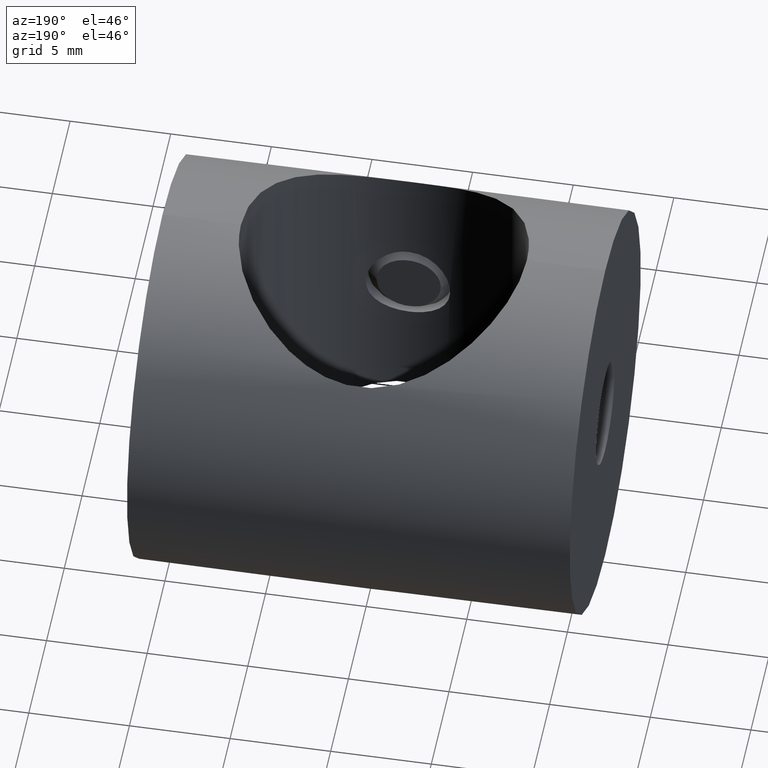
[diagram: clean part render]
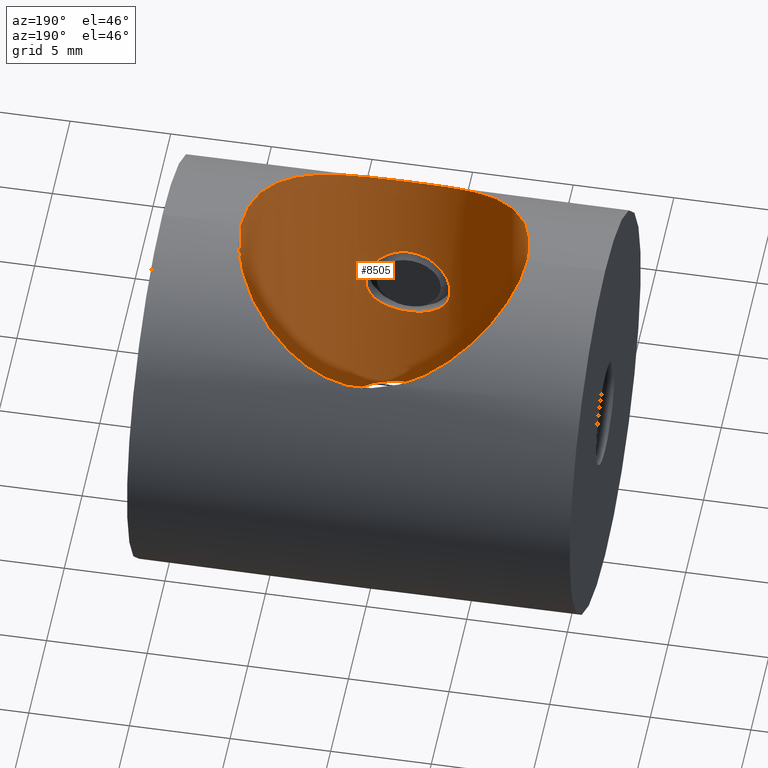
[diagram: same view with one face highlighted and labeled with its STEP entity id]
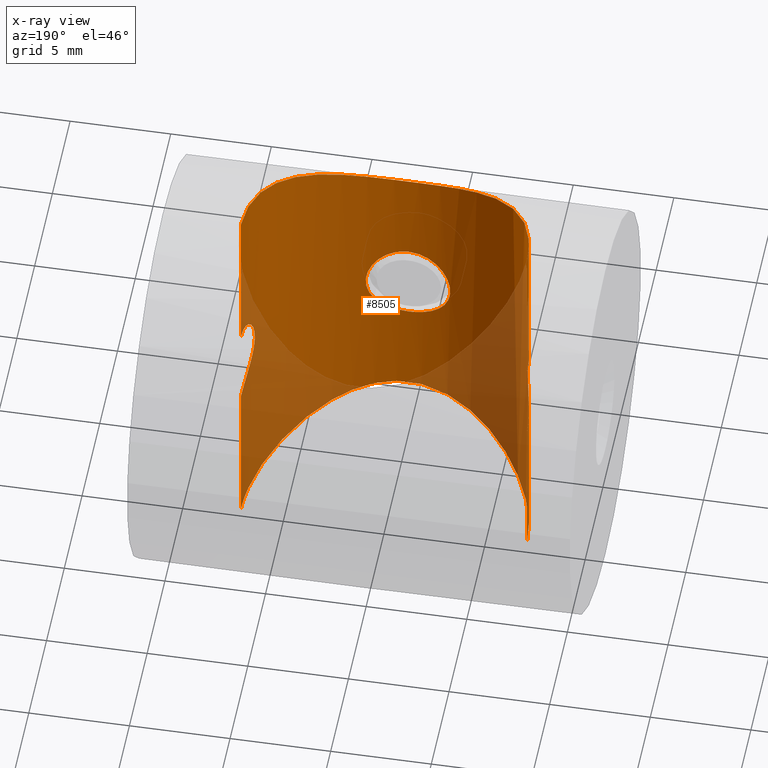
[diagram: x-ray of the same camera — body ghosted, the highlighted face saturated]
A machine part, auxiliary view. The second image highlights one B-rep face of the part: STEP entity #8505.
The next image is the same camera in x-ray: the body ghosted, the highlighted face saturated — about 30% of this face is hidden behind the body in this view.
In plain terms, the highlighted cylindrical surface (partial cylindrical patch) has radius 7.1 mm, axis along (0, 0, 1).
Its self-contained STEP definition (entity closure, byte-faithful):
#28 = CARTESIAN_POINT ( 'NONE',  ( 0.9323088189409550752, -7.039675831981105247, 1.886688406613785229 ) ) ;
#42 = CARTESIAN_POINT ( 'NONE',  ( 5.741158834325442051, -4.183379333173308012, -9.085222455470120195 ) ) ;
#62 = CARTESIAN_POINT ( 'NONE',  ( -7.080187429972791158, -0.5470429013548435693, 2.032171929405243382 ) ) ;
#91 = CARTESIAN_POINT ( 'NONE',  ( 1.055323242901380354, -7.022074291837313353, 1.820699667148012679 ) ) ;
#167 = VERTEX_POINT ( 'NONE', #10330 ) ;
#173 = CARTESIAN_POINT ( 'NONE',  ( -7.068402402341467550, -0.6811213672024135635, 1.991201993629038602 ) ) ;
#336 = CARTESIAN_POINT ( 'NONE',  ( 6.786700137893837415, -2.086023728888578788, 0.2780907808053579289 ) ) ;
#373 = EDGE_CURVE ( 'NONE', #6942, #14437, #14250, .T. ) ;
#683 = CARTESIAN_POINT ( 'NONE',  ( -6.339907423514342000, -3.230619743026475366, 9.474488335657312632 ) ) ;
#729 = CARTESIAN_POINT ( 'NONE',  ( 2.341792683786188878, -6.706792279432376880, 7.418085745624728666 ) ) ;
#775 = CARTESIAN_POINT ( 'NONE',  ( 3.194629073775333339, -6.357243667268327236, 7.722785489713716700 ) ) ;
#836 = CARTESIAN_POINT ( 'NONE',  ( 7.100000000000001421, -0.4893130302596309655, 9.999999999999996447 ) ) ;
#890 = CARTESIAN_POINT ( 'NONE',  ( -3.781368295569092375, -6.013406087123458477, 7.991416641847375324 ) ) ;
#894 = CARTESIAN_POINT ( 'NONE',  ( -6.110615842928989849, -3.622695179729527482, -9.323231693463812420 ) ) ;
#942 = CARTESIAN_POINT ( 'NONE',  ( -4.332958043052760999, -5.642311609834284702, -8.261948736885942779 ) ) ;
#948 = CARTESIAN_POINT ( 'NONE',  ( -0.1395558884279121947, -7.099999999999999645, -2.099999999999992983 ) ) ;
#968 = EDGE_CURVE ( 'NONE', #4146, #8485, #7247, .T. ) ;
#993 = CARTESIAN_POINT ( 'NONE',  ( 6.700444888831678547, -2.360310145973133267, -9.720251487651255573 ) ) ;
#1046 = CARTESIAN_POINT ( 'NONE',  ( 6.843895784680642080, -1.904761450125665778, -9.819686185743684348 ) ) ;
#1051 = CARTESIAN_POINT ( 'NONE',  ( -1.677979706533629267, -6.901674533510683496, -1.291708029665076696 ) ) ;
#1072 = CARTESIAN_POINT ( 'NONE',  ( -7.099999999999999645, 8.694990004481950811E-16, -10.00000000000000000 ) ) ;
#1101 = CARTESIAN_POINT ( 'NONE',  ( -1.282606566392966885, -6.984138483213897075, 1.668420608060625643 ) ) ;
#1138 = CARTESIAN_POINT ( 'NONE',  ( 7.100000000000001421, -0.4885654580838100780, -10.00000000000000178 ) ) ;
#1156 = CARTESIAN_POINT ( 'NONE',  ( -6.901408761663732072, -1.669330934340733430, -1.281359559856458663 ) ) ;
#1282 = CARTESIAN_POINT ( 'NONE',  ( 1.678396397419325892, -6.901617245126526967, 1.291576018960029604 ) ) ;
#1308 = CARTESIAN_POINT ( 'NONE',  ( -6.803041384893722565, -2.032097850645429471, -0.5471816930941200141 ) ) ;
#1325 = CARTESIAN_POINT ( 'NONE',  ( 1.992254806764417685, -6.814980563361859645, 0.6782477080454610840 ) ) ;
#1389 = VERTEX_POINT ( 'NONE', #11650 ) ;
#1390 = CARTESIAN_POINT ( 'NONE',  ( 0.6791173984733035462, -7.068594988563485337, 1.991881632180183770 ) ) ;
#1477 = FACE_OUTER_BOUND ( 'NONE', #3055, .T. ) ;
#1645 = CARTESIAN_POINT ( 'NONE',  ( 7.083034372186755689, -0.5527558788824248337, 2.044408543773822196 ) ) ;
#1664 = DIRECTION ( 'NONE',  ( -0.000000000000000000, -0.000000000000000000, 1.000000000000000000 ) ) ;
#1861 = CARTESIAN_POINT ( 'NONE',  ( 7.099999999999999645, -1.471639475407599384E-16, 10.00000000000000000 ) ) ;
#1912 = CARTESIAN_POINT ( 'NONE',  ( 1.665976499312913361, -6.905849096141970733, 7.232820192301774753 ) ) ;
#1968 = CARTESIAN_POINT ( 'NONE',  ( -5.735805276487137228, -4.190655048416094708, 9.081843039821002606 ) ) ;
#1971 = CARTESIAN_POINT ( 'NONE',  ( -7.099999999999999645, 8.694990004481950811E-16, -10.00000000000000000 ) ) ;
#2059 = CARTESIAN_POINT ( 'NONE',  ( 0.9649077502605267753, -7.038313784186575717, 7.103756721925539530 ) ) ;
#2063 = CARTESIAN_POINT ( 'NONE',  ( -5.597824258799348307, -4.373255585124162792, -8.995141017058687183 ) ) ;
#2124 = CARTESIAN_POINT ( 'NONE',  ( -1.055360155508706876, -7.022071268438416780, 1.820692690082646559 ) ) ;
#2308 = CARTESIAN_POINT ( 'NONE',  ( 1.282076482774270776, -6.984239648260700761, -1.668847539094477472 ) ) ;
#2321 = B_SPLINE_CURVE_WITH_KNOTS ( 'NONE', 3,
 ( #1971, #14982, #3130, #9064, #15037, #4384, #10342, #894, #5622, #9124, #2063, #10298, #3243, #13842, #942, #6809, #7979, #12725, #5675, #10143, #6857, #8033, #3086, #15290, #3488, #7117, #3444, #14099, #4579, #8174, #9365, #4743, #12830, #11751, #5917, #8226, #42, #14146, #15237, #3338, #993, #1046, #9216, #8121, #1138, #12876 ),
 .UNSPECIFIED., .F., .F.,
 ( 4, 2, 2, 2, 2, 2, 2, 2, 2, 2, 2, 2, 2, 2, 2, 2, 2, 2, 2, 2, 2, 2, 4 ),
 ( 0.02310836747724861681, 0.02455043388513945476, 0.02599250029303029272, 0.02671353349697571516, 0.02743456670092113414, 0.02815559990486655312, 0.02887663310881197209, 0.03031869951670281699, 0.03176076592459366188, 0.03320283233248449983, 0.03464489874037533779, 0.03536593194432076370, 0.03608696514826618268, 0.03680799835221160859, 0.03752903155615702757, 0.03897109796404787246, 0.04041316437193871736, 0.04113419757588413633, 0.04185523077982955531, 0.04329729718772040714, 0.04401833039166583306, 0.04473936359561125203, 0.04618143000350209693 ),
 .UNSPECIFIED. ) ;
#2335 = CARTESIAN_POINT ( 'NONE',  ( -6.782334218509492807, -2.099986321060201888, -0.1386257207713378903 ) ) ;
#2351 = CARTESIAN_POINT ( 'NONE',  ( -7.099999999999999645, 8.694837017909810914E-16, -2.099999999999988098 ) ) ;
#2355 = VERTEX_POINT ( 'NONE', #6883 ) ;
#2401 = CARTESIAN_POINT ( 'NONE',  ( 0.2769199466598910031, -7.095897631570863062, 2.086249945765541902 ) ) ;
#2430 = CARTESIAN_POINT ( 'NONE',  ( -7.022071268438414116, -1.055360155508703546, -1.820692690082642562 ) ) ;
#2503 = VERTEX_POINT ( 'NONE', #11774 ) ;
#2715 = CARTESIAN_POINT ( 'NONE',  ( 6.815122641794395086, -1.991755480301076187, -0.6794656239147798260 ) ) ;
#2808 = VERTEX_POINT ( 'NONE', #5427 ) ;
#2864 = CARTESIAN_POINT ( 'NONE',  ( 6.803041384893719012, -2.032097850645436576, 0.5471816930941182378 ) ) ;
#2964 = CARTESIAN_POINT ( 'NONE',  ( 7.099999999999999645, 0.000000000000000000, -10.00000000000000000 ) ) ;
#2973 = CARTESIAN_POINT ( 'NONE',  ( 5.604018556399312345, -4.383460300286658118, 8.997532854409987735 ) ) ;
#3033 = EDGE_CURVE ( 'NONE', #6942, #2355, #2321, .T. ) ;
#3055 = EDGE_LOOP ( 'NONE', ( #14722, #5788, #13885, #5183, #8686, #9972, #10049, #10205 ) ) ;
#3081 = CARTESIAN_POINT ( 'NONE',  ( -2.349255589171154401, -6.715785961357226164, 7.413117735916773476 ) ) ;
#3086 = CARTESIAN_POINT ( 'NONE',  ( 0.4926529024834430115, -7.086984867338069094, -7.055202179001367924 ) ) ;
#3126 = CARTESIAN_POINT ( 'NONE',  ( 2.561515086309535949, -6.625797382475345998, 7.490847731576975477 ) ) ;
#3130 = CARTESIAN_POINT ( 'NONE',  ( -7.050930695818710348, -0.9631808601528271119, -9.964978116516602924 ) ) ;
#3180 = CARTESIAN_POINT ( 'NONE',  ( -5.311624200393866957, -4.716717947981481807, 8.819884155417016203 ) ) ;
#3243 = CARTESIAN_POINT ( 'NONE',  ( -5.155115107495496396, -4.887241931357045210, -8.726299414047797853 ) ) ;
#3297 = CARTESIAN_POINT ( 'NONE',  ( -1.387820867358763754, -6.963746808543973543, 1.581999370681936856 ) ) ;
#3331 = CARTESIAN_POINT ( 'NONE',  ( 0.5462035636502060587, -7.080245790686971574, -2.032374016832111607 ) ) ;
#3338 = CARTESIAN_POINT ( 'NONE',  ( 6.618520726210851635, -2.580514156291253247, -9.663867227412385574 ) ) ;
#3444 = CARTESIAN_POINT ( 'NONE',  ( 1.903996117880146111, -6.843962642657341000, -7.291728700128183860 ) ) ;
#3449 = CARTESIAN_POINT ( 'NONE',  ( -1.669330934340737649, -6.901408761663732072, 1.281359559856461106 ) ) ;
#3481 = CARTESIAN_POINT ( 'NONE',  ( 1.677960758504403627, -6.901680541053726969, -1.291744479987198435 ) ) ;
#3488 = CARTESIAN_POINT ( 'NONE',  ( 1.208011967929391695, -7.000511224860290760, -7.141242269304292734 ) ) ;
#3499 = AXIS2_PLACEMENT_3D ( 'NONE', #11126, #8700, #4109 ) ;
#3558 = CARTESIAN_POINT ( 'NONE',  ( -6.963746808543975320, -1.387820867358761312, -1.581999370681933748 ) ) ;
#3629 = CARTESIAN_POINT ( 'NONE',  ( 2.571603022010232616E-16, -7.099999999999999645, 2.099999999999992539 ) ) ;
#3656 = CARTESIAN_POINT ( 'NONE',  ( -6.963437272607973405, -1.389324715812028987, 1.580603750594614221 ) ) ;
#3832 = CARTESIAN_POINT ( 'NONE',  ( 6.984199795158942514, -1.282296625483396069, -1.668682462415552736 ) ) ;
#3878 = CARTESIAN_POINT ( 'NONE',  ( 7.022201639481610691, -1.054521478627189479, -1.821200221615751458 ) ) ;
#4036 = EDGE_CURVE ( 'NONE', #4146, #167, #13642, .T. ) ;
#4041 = CARTESIAN_POINT ( 'NONE',  ( 6.963437272607971629, -1.389324715812032540, -1.580603750594617996 ) ) ;
#4109 = DIRECTION ( 'NONE',  ( 1.000000000000000000, 0.000000000000000000, 0.000000000000000000 ) ) ;
#4146 = VERTEX_POINT ( 'NONE', #13711 ) ;
#4169 = CARTESIAN_POINT ( 'NONE',  ( -3.190587785314075386, -6.346785144836242232, 7.729007163407745296 ) ) ;
#4261 = CARTESIAN_POINT ( 'NONE',  ( -3.589505625858923299, -6.130006643751418238, 7.902040999278963973 ) ) ;
#4359 = VECTOR ( 'NONE', #5986, 1000.000000000000000 ) ;
#4379 = CARTESIAN_POINT ( 'NONE',  ( -6.903363791232252744, -1.676534675991864676, 9.861299921049340611 ) ) ;
#4384 = CARTESIAN_POINT ( 'NONE',  ( -6.436588628494078534, -3.005855003677227355, -9.540184363135907120 ) ) ;
#4403 = EDGE_CURVE ( 'NONE', #12755, #2808, #5372, .T. ) ;
#4429 = B_SPLINE_CURVE_WITH_KNOTS ( 'NONE', 3,
 ( #1861, #836, #5564, #14825, #7830, #10091, #11333, #2973, #12476, #12569, #11233, #13791, #775, #3126, #729, #8965, #1912, #11274, #2059, #11388, #10244, #5520, #12523, #10138, #5475, #11436, #3081, #13682, #4169, #4261, #890, #5357, #7882, #9015, #3180, #14924, #1968, #14978, #683, #10190, #13741, #9119, #4379, #6697, #12622, #8914 ),
 .UNSPECIFIED., .F., .F.,
 ( 4, 2, 2, 2, 2, 2, 2, 2, 2, 2, 2, 2, 2, 2, 2, 2, 2, 2, 2, 2, 2, 2, 4 ),
 ( 1.424570420451287760E-19, 0.001444272967328040936, 0.002888545934656080571, 0.004332818901984120639, 0.005777091869312160274, 0.007221364836640199909, 0.008665637803968239544, 0.009387774287632259795, 0.01010991077129627831, 0.01083204725496029683, 0.01155418373862431534, 0.01227632022228833386, 0.01299845670595235585, 0.01444272967328039288, 0.01516486615694441140, 0.01588700264060843165, 0.01733127560793647215, 0.01805341209160049240, 0.01877554857526451265, 0.02021982154259254622, 0.02094195802625656647, 0.02166409450992058325, 0.02310836747724862028 ),
 .UNSPECIFIED. ) ;
#4477 = CARTESIAN_POINT ( 'NONE',  ( -0.2768700835284599315, -7.095889862188839992, -2.086221858631606807 ) ) ;
#4522 = CARTESIAN_POINT ( 'NONE',  ( 0.6800285649676099942, -7.068514788919578962, -1.991603623804293122 ) ) ;
#4579 = CARTESIAN_POINT ( 'NONE',  ( 2.568070505341697896, -6.623230981783835070, -7.493113617169333551 ) ) ;
#4585 = CARTESIAN_POINT ( 'NONE',  ( -0.2750371563006487330, -7.100000000000001421, 2.099999999999992539 ) ) ;
#4634 = CARTESIAN_POINT ( 'NONE',  ( -2.032097850645433912, -6.803041384893718124, 0.5471816930941190149 ) ) ;
#4675 = CARTESIAN_POINT ( 'NONE',  ( 2.086433839472587870, -6.786574712244386909, -0.2755932876534415987 ) ) ;
#4691 = CARTESIAN_POINT ( 'NONE',  ( -2.099986321060206329, -6.782334218509492807, 0.1386257207713384454 ) ) ;
#4743 = CARTESIAN_POINT ( 'NONE',  ( 4.343443741986149575, -5.634574222753908401, -8.267351533180402612 ) ) ;
#4804 = CARTESIAN_POINT ( 'NONE',  ( -6.786700137893840079, -2.086023728888573903, -0.2780907808053610375 ) ) ;
#4931 = CARTESIAN_POINT ( 'NONE',  ( 1.387475279684308171, -6.963816921382947278, 1.582311005514036806 ) ) ;
#4979 = CARTESIAN_POINT ( 'NONE',  ( 2.100062503646422662, -6.782310630241687122, 0.1368903096103942230 ) ) ;
#5028 = CARTESIAN_POINT ( 'NONE',  ( 7.099999999999999645, -0.1395558884279123613, -2.099999999999993872 ) ) ;
#5135 = CARTESIAN_POINT ( 'NONE',  ( 6.862988270548245673, -1.820851631032319728, 1.055010629211577067 ) ) ;
#5181 = CARTESIAN_POINT ( 'NONE',  ( 7.039408073826178835, -0.9343301388894172943, -1.885693211488773668 ) ) ;
#5183 = ORIENTED_EDGE ( 'NONE', *, *, #11922, .T. ) ;
#5234 = CARTESIAN_POINT ( 'NONE',  ( 7.080187429972791158, -0.5470429013548431252, -2.032171929405249156 ) ) ;
#5357 = CARTESIAN_POINT ( 'NONE',  ( -4.336626874100041995, -5.639402732239245708, 8.263916001061893724 ) ) ;
#5372 = B_SPLINE_CURVE_WITH_KNOTS ( 'NONE', 3,
 ( #7012, #4585, #8125, #12836, #2124, #1101, #3297, #8086, #3449, #5630, #6964, #11701, #4634, #9178, #4691, #13847, #9371, #15242, #6815, #8182, #1051, #15041, #9267, #9320, #15195, #10349, #7985, #4477, #948, #11554 ),
 .UNSPECIFIED., .F., .F.,
 ( 4, 2, 2, 2, 2, 2, 2, 2, 2, 2, 2, 2, 2, 2, 4 ),
 ( 0.006602691927807549481, 0.007427805546509173851, 0.007840362355859987337, 0.008252919165210800823, 0.008665475974561612574, 0.009078032783912426060, 0.009490589593263239546, 0.009903146402614051297, 0.01031570321196486478, 0.01072826002131567827, 0.01155337364001730351, 0.01196593044936811699, 0.01237848725871892874, 0.01279104406806974223, 0.01320360087742055571 ),
 .UNSPECIFIED. ) ;
#5427 = CARTESIAN_POINT ( 'NONE',  ( 2.752039478900498037E-16, -7.099999999999999645, -2.099999999999992539 ) ) ;
#5475 = CARTESIAN_POINT ( 'NONE',  ( -1.204159277768762193, -7.001227745549243764, 7.140542938097230952 ) ) ;
#5520 = CARTESIAN_POINT ( 'NONE',  ( -0.2457705600388734868, -7.099856513282880144, 7.042161424704970862 ) ) ;
#5564 = CARTESIAN_POINT ( 'NONE',  ( 7.049981864963156042, -0.9674575308091168946, 9.964312414166847987 ) ) ;
#5622 = CARTESIAN_POINT ( 'NONE',  ( -5.990621523088790035, -3.817603636846522708, -9.244881778298470465 ) ) ;
#5629 = B_SPLINE_CURVE_WITH_KNOTS ( 'NONE', 3,
 ( #8027, #12867, #10386, #3331, #4522, #14030, #15229, #2308, #13937, #3481, #11740, #6899, #5754, #4675, #11635, #4979, #8312, #11993, #1325, #14178, #1282, #4931, #7152, #91, #28, #1390, #11941, #2401, #14229, #3629 ),
 .UNSPECIFIED., .F., .F.,
 ( 4, 2, 2, 2, 2, 2, 2, 2, 2, 2, 2, 2, 2, 2, 4 ),
 ( 2.672288470014844401E-19, 0.0004126682454879722220, 0.0008253364909759441188, 0.001238004736463916124, 0.001650672981951888021, 0.002476009472927831381, 0.002888677718415803494, 0.003301345963903775174, 0.003714014209391746854, 0.004126682454879718534, 0.004952018945855661894, 0.005364687191343634441, 0.005777355436831606121, 0.006190023682319577801, 0.006602691927807549481 ),
 .UNSPECIFIED. ) ;
#5630 = CARTESIAN_POINT ( 'NONE',  ( -1.820851631032317508, -6.862988270548244785, 1.055010629211578399 ) ) ;
#5675 = CARTESIAN_POINT ( 'NONE',  ( -1.900165551187406043, -6.857814841331947520, -7.279317858959697851 ) ) ;
#5680 = LINE ( 'NONE', #2964, #11381 ) ;
#5693 = CYLINDRICAL_SURFACE ( 'NONE', #3499, 7.099999999999999645 ) ;
#5754 = CARTESIAN_POINT ( 'NONE',  ( 2.032212786353637668, -6.803007693833079905, -0.5470548580140218720 ) ) ;
#5788 = ORIENTED_EDGE ( 'NONE', *, *, #373, .T. ) ;
#5836 = CARTESIAN_POINT ( 'NONE',  ( -7.099999999999998757, -0.2750371563006474007, -2.099999999999988098 ) ) ;
#5917 = CARTESIAN_POINT ( 'NONE',  ( 5.314119276309887674, -4.713955446703271157, -8.821381827697374334 ) ) ;
#5933 = CARTESIAN_POINT ( 'NONE',  ( -7.039408073826178835, -0.9343301388894197368, 1.885693211488767229 ) ) ;
#5940 = CARTESIAN_POINT ( 'NONE',  ( 7.099999999999999645, 0.000000000000000000, -10.00000000000000000 ) ) ;
#5986 = DIRECTION ( 'NONE',  ( -0.000000000000000000, -0.000000000000000000, 1.000000000000000000 ) ) ;
#6042 = CARTESIAN_POINT ( 'NONE',  ( -6.815122641794395086, -1.991755480301071524, 0.6794656239147762733 ) ) ;
#6269 = CARTESIAN_POINT ( 'NONE',  ( 6.922309815601218830, -1.581595141056597376, 1.388281519901723993 ) ) ;
#6376 = CARTESIAN_POINT ( 'NONE',  ( 7.099999999999998757, -0.2750371563006489550, 2.099999999999993872 ) ) ;
#6431 = CARTESIAN_POINT ( 'NONE',  ( 7.099999999999999645, 2.458807522702886608E-17, -2.099999999999993427 ) ) ;
#6697 = CARTESIAN_POINT ( 'NONE',  ( -7.049122342968483501, -0.9739993888403304378, 9.963701310321491533 ) ) ;
#6809 = CARTESIAN_POINT ( 'NONE',  ( -3.590330950858786618, -6.141638980649368307, -7.897831845815043827 ) ) ;
#6815 = CARTESIAN_POINT ( 'NONE',  ( -1.991755480301075298, -6.815122641794394198, -0.6794656239147771615 ) ) ;
#6857 = CARTESIAN_POINT ( 'NONE',  ( -0.4823454865311107009, -7.100276997175892113, -7.041737478733363531 ) ) ;
#6883 = CARTESIAN_POINT ( 'NONE',  ( 7.099999999999999645, 1.471639475407599384E-16, -10.00000000000000000 ) ) ;
#6899 = CARTESIAN_POINT ( 'NONE',  ( 1.991472193640447141, -6.815204645832429797, -0.6802309339139396283 ) ) ;
#6942 = VERTEX_POINT ( 'NONE', #1072 ) ;
#6964 = CARTESIAN_POINT ( 'NONE',  ( -1.885714002395608047, -6.845227988580134593, 0.9345075730327792041 ) ) ;
#6991 = FACE_BOUND ( 'NONE', #11733, .T. ) ;
#7012 = CARTESIAN_POINT ( 'NONE',  ( 2.571603022010232616E-16, -7.099999999999999645, 2.099999999999992539 ) ) ;
#7109 = ORIENTED_EDGE ( 'NONE', *, *, #8829, .T. ) ;
#7117 = CARTESIAN_POINT ( 'NONE',  ( 1.673312391666421206, -6.904091248234712985, -7.234502235423112992 ) ) ;
#7134 = CARTESIAN_POINT ( 'NONE',  ( -6.859900612921052243, -1.834041887438064844, 1.058935344904385234 ) ) ;
#7152 = CARTESIAN_POINT ( 'NONE',  ( 1.282266932596182629, -6.984198309087505052, 1.668665915793555499 ) ) ;
#7175 = CARTESIAN_POINT ( 'NONE',  ( -6.862988270548250114, -1.820851631032314843, -1.055010629211576623 ) ) ;
#7220 = CARTESIAN_POINT ( 'NONE',  ( -7.099999999999999645, 8.694992273946207746E-16, -10.00000000000000000 ) ) ;
#7225 = CARTESIAN_POINT ( 'NONE',  ( -6.802894826740145895, -2.032588154408208059, 0.5455306961420406386 ) ) ;
#7247 = LINE ( 'NONE', #5940, #9269 ) ;
#7391 = CARTESIAN_POINT ( 'NONE',  ( 7.039655025588636761, -0.9324622595629203925, 1.886610843116447445 ) ) ;
#7550 = CARTESIAN_POINT ( 'NONE',  ( 6.782334218509491919, -2.099986321060207217, 0.1386257207713375295 ) ) ;
#7830 = CARTESIAN_POINT ( 'NONE',  ( 6.711285414718765274, -2.363564383977755146, 9.726933232177136901 ) ) ;
#7882 = CARTESIAN_POINT ( 'NONE',  ( -4.679978140624778682, -5.358108563623215304, 8.451308607336507350 ) ) ;
#7979 = CARTESIAN_POINT ( 'NONE',  ( -3.187747896396082581, -6.360660824115192291, -7.719948467279424520 ) ) ;
#7985 = CARTESIAN_POINT ( 'NONE',  ( -0.5470429013548434583, -7.080187429972791158, -2.032171929405247823 ) ) ;
#8027 = CARTESIAN_POINT ( 'NONE',  ( 2.752039478900498037E-16, -7.099999999999999645, -2.099999999999992539 ) ) ;
#8033 = CARTESIAN_POINT ( 'NONE',  ( 0.2472630983743758226, -7.099859759983489838, -7.042158151275289768 ) ) ;
#8086 = CARTESIAN_POINT ( 'NONE',  ( -1.581595141056595821, -6.922309815601218830, 1.388281519901724659 ) ) ;
#8121 = CARTESIAN_POINT ( 'NONE',  ( 7.049864166528774234, -0.9687585133533482828, -9.964227519172107250 ) ) ;
#8125 = CARTESIAN_POINT ( 'NONE',  ( -0.5527558788824240565, -7.083034372186757466, 2.044408543773821751 ) ) ;
#8166 = CARTESIAN_POINT ( 'NONE',  ( 2.571603022010232616E-16, -7.099999999999999645, 2.099999999999992539 ) ) ;
#8174 = CARTESIAN_POINT ( 'NONE',  ( 3.198682552904839937, -6.355086856968283016, -7.724547385566869373 ) ) ;
#8182 = CARTESIAN_POINT ( 'NONE',  ( -1.834041887438068175, -6.859900612921049579, -1.058935344904387010 ) ) ;
#8194 = CARTESIAN_POINT ( 'NONE',  ( -7.022201639481612467, -1.054521478627190145, 1.821200221615744796 ) ) ;
#8226 = CARTESIAN_POINT ( 'NONE',  ( 5.603601915133011424, -4.365877370365480736, -8.998737027520220977 ) ) ;
#8300 = DIRECTION ( 'NONE',  ( -0.000000000000000000, -0.000000000000000000, 1.000000000000000000 ) ) ;
#8312 = CARTESIAN_POINT ( 'NONE',  ( 2.086205837299403232, -6.786644351226339467, 0.2769462870695630352 ) ) ;
#8396 = CARTESIAN_POINT ( 'NONE',  ( -7.099999999999999645, 3.698598784835404182E-16, 2.099999999999988098 ) ) ;
#8485 = VERTEX_POINT ( 'NONE', #11267 ) ;
#8505 = ADVANCED_FACE ( 'NONE', ( #6991, #1477 ), #5693, .F. ) ;
#8542 = VECTOR ( 'NONE', #9328, 1000.000000000000000 ) ;
#8581 = CARTESIAN_POINT ( 'NONE',  ( 6.901674533510682608, -1.677979706533630377, -1.291708029665076252 ) ) ;
#8686 = ORIENTED_EDGE ( 'NONE', *, *, #10014, .F. ) ;
#8700 = DIRECTION ( 'NONE',  ( -0.000000000000000000, -0.000000000000000000, 1.000000000000000000 ) ) ;
#8786 = CARTESIAN_POINT ( 'NONE',  ( 6.859900612921050467, -1.834041887438067953, -1.058935344904388787 ) ) ;
#8829 = EDGE_CURVE ( 'NONE', #2808, #12755, #5629, .T. ) ;
#8914 = CARTESIAN_POINT ( 'NONE',  ( -7.099999999999999645, 8.694994543398272836E-16, 10.00000000000000000 ) ) ;
#8965 = CARTESIAN_POINT ( 'NONE',  ( 1.893877147012570150, -6.846771867479724882, 7.289085937453526398 ) ) ;
#9015 = CARTESIAN_POINT ( 'NONE',  ( -5.158169974800401292, -4.884021212601576956, 8.728105346171126655 ) ) ;
#9064 = CARTESIAN_POINT ( 'NONE',  ( -6.855498246005952367, -1.909315281877916437, -9.827666121028276081 ) ) ;
#9119 = CARTESIAN_POINT ( 'NONE',  ( -6.843329267694600482, -1.906571420111958126, 9.819293386073839613 ) ) ;
#9124 = CARTESIAN_POINT ( 'NONE',  ( -5.734226477516820353, -4.192885696689510056, -9.080839507296412094 ) ) ;
#9178 = CARTESIAN_POINT ( 'NONE',  ( -2.086023728888577899, -6.786700137893838303, 0.2780907808053591501 ) ) ;
#9216 = CARTESIAN_POINT ( 'NONE',  ( 6.904511702454885658, -1.671821643175152028, -9.862103891724448346 ) ) ;
#9267 = CARTESIAN_POINT ( 'NONE',  ( -1.282296625483397179, -6.984199795158942514, -1.668682462415550516 ) ) ;
#9269 = VECTOR ( 'NONE', #8300, 1000.000000000000000 ) ;
#9320 = CARTESIAN_POINT ( 'NONE',  ( -1.054521478627190367, -7.022201639481613356, -1.821200221615749459 ) ) ;
#9328 = DIRECTION ( 'NONE',  ( -0.000000000000000000, -0.000000000000000000, 1.000000000000000000 ) ) ;
#9365 = CARTESIAN_POINT ( 'NONE',  ( 3.594571415070467513, -6.139461422102084676, -7.899654517219304672 ) ) ;
#9371 = CARTESIAN_POINT ( 'NONE',  ( -2.086474501874048038, -6.786561484445408965, -0.2750318143474449473 ) ) ;
#9502 = LINE ( 'NONE', #13040, #4359 ) ;
#9528 = CARTESIAN_POINT ( 'NONE',  ( -6.845227988580134593, -1.885714002395604716, -0.9345075730327757624 ) ) ;
#9758 = CARTESIAN_POINT ( 'NONE',  ( 6.984138483213896187, -1.282606566392967329, 1.668420608060625865 ) ) ;
#9972 = ORIENTED_EDGE ( 'NONE', *, *, #968, .F. ) ;
#10014 = EDGE_CURVE ( 'NONE', #8485, #1389, #4429, .T. ) ;
#10049 = ORIENTED_EDGE ( 'NONE', *, *, #4036, .T. ) ;
#10091 = CARTESIAN_POINT ( 'NONE',  ( 6.344170402631729822, -3.221690614785424511, 9.477361251057361713 ) ) ;
#10138 = CARTESIAN_POINT ( 'NONE',  ( -0.9644858065511271450, -7.038293491845584171, 7.103775650427212263 ) ) ;
#10143 = CARTESIAN_POINT ( 'NONE',  ( -0.9601417326159433774, -7.051126248564925092, -7.092228952632662065 ) ) ;
#10190 = CARTESIAN_POINT ( 'NONE',  ( -6.618031315347995047, -2.582052289316477900, 9.663524939786221069 ) ) ;
#10205 = ORIENTED_EDGE ( 'NONE', *, *, #10326, .F. ) ;
#10244 = CARTESIAN_POINT ( 'NONE',  ( 0.2374091462834029831, -7.100141024983104288, 7.041874570464878857 ) ) ;
#10298 = CARTESIAN_POINT ( 'NONE',  ( -5.308584849970634068, -4.720161833654057837, -8.818049591247872243 ) ) ;
#10326 = EDGE_CURVE ( 'NONE', #2355, #167, #5680, .T. ) ;
#10330 = CARTESIAN_POINT ( 'NONE',  ( 7.099999999999999645, 2.458807522702886608E-17, -2.099999999999993427 ) ) ;
#10342 = CARTESIAN_POINT ( 'NONE',  ( -6.333536802058240767, -3.217119506960255837, -9.470834791779413564 ) ) ;
#10349 = CARTESIAN_POINT ( 'NONE',  ( -0.6811213672024127863, -7.068402402341467550, -1.991201993629042599 ) ) ;
#10386 = CARTESIAN_POINT ( 'NONE',  ( 0.2767032512201560990, -7.095889944203542576, -2.086220934609436473 ) ) ;
#10624 = CARTESIAN_POINT ( 'NONE',  ( -7.083034372186755689, -0.5527558788824225022, -2.044408543773818199 ) ) ;
#10675 = CARTESIAN_POINT ( 'NONE',  ( -6.814997145478962182, -1.992204161622318948, -0.6784867583830728188 ) ) ;
#10895 = CARTESIAN_POINT ( 'NONE',  ( 6.802894826740146783, -2.032588154408212500, -0.5455306961420440803 ) ) ;
#11008 = CARTESIAN_POINT ( 'NONE',  ( 6.963746808543972655, -1.387820867358765087, 1.581999370681936190 ) ) ;
#11126 = CARTESIAN_POINT ( 'NONE',  ( 0.000000000000000000, 0.000000000000000000, -10.00000000000000000 ) ) ;
#11233 = CARTESIAN_POINT ( 'NONE',  ( 4.329995816533911857, -5.644530966289479146, 8.260409447843716890 ) ) ;
#11267 = CARTESIAN_POINT ( 'NONE',  ( 7.099999999999999645, -1.471639475407599384E-16, 10.00000000000000000 ) ) ;
#11274 = CARTESIAN_POINT ( 'NONE',  ( 1.201491668315240791, -7.001617470693243916, 7.140153532448467288 ) ) ;
#11333 = CARTESIAN_POINT ( 'NONE',  ( 6.120740452210418070, -3.627159288111291513, 9.328131493983363498 ) ) ;
#11381 = VECTOR ( 'NONE', #1664, 1000.000000000000000 ) ;
#11388 = CARTESIAN_POINT ( 'NONE',  ( 0.4820153701022866222, -7.087776031603194582, 7.054406524634392994 ) ) ;
#11436 = CARTESIAN_POINT ( 'NONE',  ( -1.906713200226078264, -6.855888185875277152, 7.281138013127543829 ) ) ;
#11554 = CARTESIAN_POINT ( 'NONE',  ( 2.752039478900498037E-16, -7.099999999999999645, -2.099999999999992539 ) ) ;
#11635 = CARTESIAN_POINT ( 'NONE',  ( 2.099937061584780107, -6.782349470625481658, -0.1388013453450367696 ) ) ;
#11650 = CARTESIAN_POINT ( 'NONE',  ( -7.099999999999999645, 8.694994543398272836E-16, 10.00000000000000000 ) ) ;
#11701 = CARTESIAN_POINT ( 'NONE',  ( -1.992204161622322722, -6.814997145478961293, 0.6784867583830760385 ) ) ;
#11733 = EDGE_LOOP ( 'NONE', ( #7109, #12485 ) ) ;
#11740 = CARTESIAN_POINT ( 'NONE',  ( 1.834038904729698771, -6.859898304378432954, -1.058774660597840311 ) ) ;
#11751 = CARTESIAN_POINT ( 'NONE',  ( 5.162518315801956525, -4.879372731417380038, -8.730688274456728237 ) ) ;
#11774 = CARTESIAN_POINT ( 'NONE',  ( -7.099999999999999645, 3.698598784835404182E-16, 2.099999999999988098 ) ) ;
#11814 = CARTESIAN_POINT ( 'NONE',  ( -6.786561484445408965, -2.086474501874044041, 0.2750318143474439481 ) ) ;
#11915 = B_SPLINE_CURVE_WITH_KNOTS ( 'NONE', 3,
 ( #12935, #5836, #10624, #11919, #2430, #14117, #3558, #15255, #1156, #7175, #9528, #10675, #1308, #4804, #2335, #14164, #11814, #7225, #6042, #7134, #12992, #3656, #13089, #8194, #5933, #173, #62, #13042, #14059, #8396 ),
 .UNSPECIFIED., .F., .F.,
 ( 4, 2, 2, 2, 2, 2, 2, 2, 2, 2, 2, 2, 2, 2, 4 ),
 ( 0.006602691927807536471, 0.007427805546509161708, 0.007840362355859975194, 0.008252919165210786945, 0.008665475974561600431, 0.009078032783912412182, 0.009490589593263223933, 0.009903146402614035684, 0.01031570321196484744, 0.01072826002131566092, 0.01155337364001728442, 0.01196593044936809444, 0.01237848725871890793, 0.01279104406806971968, 0.01320360087742053143 ),
 .UNSPECIFIED. ) ;
#11919 = CARTESIAN_POINT ( 'NONE',  ( -7.039655025588635873, -0.9324622595629171729, -1.886610843116443226 ) ) ;
#11922 = EDGE_CURVE ( 'NONE', #2503, #1389, #9502, .T. ) ;
#11941 = CARTESIAN_POINT ( 'NONE',  ( 0.5481068254442511556, -7.080114883424739602, 2.031920864838556273 ) ) ;
#11993 = CARTESIAN_POINT ( 'NONE',  ( 2.032192505950630945, -6.803013300323065060, 0.5469439278955459116 ) ) ;
#12094 = CARTESIAN_POINT ( 'NONE',  ( 7.068402402341467550, -0.6811213672024103438, -1.991201993629045486 ) ) ;
#12146 = CARTESIAN_POINT ( 'NONE',  ( 7.095889862188839992, -0.2768700835284597650, -2.086221858631607251 ) ) ;
#12187 = CARTESIAN_POINT ( 'NONE',  ( 7.022071268438415892, -1.055360155508707098, 1.820692690082646337 ) ) ;
#12246 = CARTESIAN_POINT ( 'NONE',  ( 6.786561484445408965, -2.086474501874048482, -0.2750318143474462795 ) ) ;
#12302 = CARTESIAN_POINT ( 'NONE',  ( 6.845227988580131040, -1.885714002395609379, 0.9345075730327768726 ) ) ;
#12476 = CARTESIAN_POINT ( 'NONE',  ( 5.315721574423537099, -4.727933502393292464, 8.819280720752281866 ) ) ;
#12485 = ORIENTED_EDGE ( 'NONE', *, *, #4403, .T. ) ;
#12523 = CARTESIAN_POINT ( 'NONE',  ( -0.4861350288241452211, -7.087417081147730613, 7.054765969669996473 ) ) ;
#12569 = CARTESIAN_POINT ( 'NONE',  ( 4.680035696687210311, -5.357939616828299556, 8.451363836500446425 ) ) ;
#12622 = CARTESIAN_POINT ( 'NONE',  ( -7.100000000000000533, -0.4830071624903241045, 10.00000000000000000 ) ) ;
#12725 = CARTESIAN_POINT ( 'NONE',  ( -2.344157783707735199, -6.717489639403538604, -7.411541229824594623 ) ) ;
#12755 = VERTEX_POINT ( 'NONE', #8166 ) ;
#12830 = CARTESIAN_POINT ( 'NONE',  ( 4.687237154211523205, -5.351570079195420604, -8.455381817446369297 ) ) ;
#12836 = CARTESIAN_POINT ( 'NONE',  ( -0.9324622595629196153, -7.039655025588637649, 1.886610843116446778 ) ) ;
#12867 = CARTESIAN_POINT ( 'NONE',  ( 0.1395935840101246994, -7.099999999999999645, -2.099999999999992539 ) ) ;
#12876 = CARTESIAN_POINT ( 'NONE',  ( 7.099999999999999645, 1.471639475407599384E-16, -10.00000000000000000 ) ) ;
#12935 = CARTESIAN_POINT ( 'NONE',  ( -7.099999999999999645, 8.694837017909810914E-16, -2.099999999999988098 ) ) ;
#12992 = CARTESIAN_POINT ( 'NONE',  ( -6.901674533510683496, -1.677979706533627047, 1.291708029665072699 ) ) ;
#13040 = CARTESIAN_POINT ( 'NONE',  ( -7.099999999999999645, 8.694992273946207746E-16, -10.00000000000000000 ) ) ;
#13042 = CARTESIAN_POINT ( 'NONE',  ( -7.095889862188840880, -0.2768700835284606532, 2.086221858631602810 ) ) ;
#13089 = CARTESIAN_POINT ( 'NONE',  ( -6.984199795158942514, -1.282296625483396069, 1.668682462415545631 ) ) ;
#13311 = CARTESIAN_POINT ( 'NONE',  ( 7.099999999999999645, -1.552560303009094218E-20, 2.099999999999993427 ) ) ;
#13367 = CARTESIAN_POINT ( 'NONE',  ( 6.782325754081596436, -2.100013658461831856, -0.1382109741413807547 ) ) ;
#13456 = CARTESIAN_POINT ( 'NONE',  ( 6.901408761663733848, -1.669330934340739425, 1.281359559856460439 ) ) ;
#13642 = B_SPLINE_CURVE_WITH_KNOTS ( 'NONE', 3,
 ( #13311, #6376, #1645, #7391, #12187, #9758, #11008, #6269, #13456, #5135, #12302, #14435, #2864, #336, #7550, #13367, #12246, #10895, #2715, #8786, #8581, #4041, #3832, #3878, #5181, #12094, #5234, #12146, #5028, #6431 ),
 .UNSPECIFIED., .F., .F.,
 ( 4, 2, 2, 2, 2, 2, 2, 2, 2, 2, 2, 2, 2, 2, 4 ),
 ( 0.006602691927807553818, 0.007427805546509180790, 0.007840362355859994276, 0.008252919165210807761, 0.008665475974561621247, 0.009078032783912434733, 0.009490589593263248219, 0.009903146402614061705, 0.01031570321196487346, 0.01072826002131568694, 0.01155337364001731565, 0.01196593044936812740, 0.01237848725871893915, 0.01279104406806975264, 0.01320360087742056612 ),
 .UNSPECIFIED. ) ;
#13682 = CARTESIAN_POINT ( 'NONE',  ( -2.983269417438192850, -6.446921692442187712, 7.645340058025541730 ) ) ;
#13711 = CARTESIAN_POINT ( 'NONE',  ( 7.099999999999999645, -1.552560303009094218E-20, 2.099999999999993427 ) ) ;
#13741 = CARTESIAN_POINT ( 'NONE',  ( -6.700952395441807319, -2.358687567291596565, 9.720603383622091087 ) ) ;
#13791 = CARTESIAN_POINT ( 'NONE',  ( 3.588293402621285821, -6.142779831420511982, 7.896920286929583810 ) ) ;
#13842 = CARTESIAN_POINT ( 'NONE',  ( -4.676799648602810500, -5.360869977475681836, -8.449545178381022481 ) ) ;
#13847 = CARTESIAN_POINT ( 'NONE',  ( -2.100013658461830968, -6.782325754081596436, -0.1382109741413794224 ) ) ;
#13885 = ORIENTED_EDGE ( 'NONE', *, *, #14846, .T. ) ;
#13937 = CARTESIAN_POINT ( 'NONE',  ( 1.389233117222716585, -6.963455894559237080, -1.580686677737289880 ) ) ;
#14030 = CARTESIAN_POINT ( 'NONE',  ( 0.9340290052023203504, -7.039455233737018425, -1.885872122113019911 ) ) ;
#14059 = CARTESIAN_POINT ( 'NONE',  ( -7.099999999999997868, -0.1395558884279116674, 2.099999999999988098 ) ) ;
#14099 = CARTESIAN_POINT ( 'NONE',  ( 2.351584378588245539, -6.703363094848114656, -7.421189615485556779 ) ) ;
#14117 = CARTESIAN_POINT ( 'NONE',  ( -6.984138483213896187, -1.282606566392963332, -1.668420608060622312 ) ) ;
#14146 = CARTESIAN_POINT ( 'NONE',  ( 6.124548113033560170, -3.620245852954670607, -9.330677296239789698 ) ) ;
#14164 = CARTESIAN_POINT ( 'NONE',  ( -6.782325754081597324, -2.100013658461825639, 0.1382109741413794779 ) ) ;
#14178 = CARTESIAN_POINT ( 'NONE',  ( 1.833153994379059792, -6.860153322571834522, 1.061104663580003438 ) ) ;
#14229 = CARTESIAN_POINT ( 'NONE',  ( 0.1375557234325969491, -7.100000000000000533, 2.099999999999992539 ) ) ;
#14250 = LINE ( 'NONE', #7220, #8542 ) ;
#14435 = CARTESIAN_POINT ( 'NONE',  ( 6.814997145478959517, -1.992204161622324499, 0.6784867583830734850 ) ) ;
#14437 = VERTEX_POINT ( 'NONE', #2351 ) ;
#14722 = ORIENTED_EDGE ( 'NONE', *, *, #3033, .F. ) ;
#14825 = CARTESIAN_POINT ( 'NONE',  ( 6.856831956957285534, -1.903174685697018864, 9.828602244305185920 ) ) ;
#14846 = EDGE_CURVE ( 'NONE', #14437, #2503, #11915, .T. ) ;
#14924 = CARTESIAN_POINT ( 'NONE',  ( -5.600036242078324733, -4.370397457260574825, 8.996522149217275555 ) ) ;
#14978 = CARTESIAN_POINT ( 'NONE',  ( -6.118075250474655391, -3.630890090308667162, 9.326440268995483507 ) ) ;
#14982 = CARTESIAN_POINT ( 'NONE',  ( -7.099999999999999645, -0.4822692244157796848, -10.00000000000000000 ) ) ;
#15037 = CARTESIAN_POINT ( 'NONE',  ( -6.712702186189400066, -2.359868484024260749, -9.727905667774859211 ) ) ;
#15041 = CARTESIAN_POINT ( 'NONE',  ( -1.389324715812030986, -6.963437272607972517, -1.580603750594619328 ) ) ;
#15195 = CARTESIAN_POINT ( 'NONE',  ( -0.9343301388894197368, -7.039408073826177947, -1.885693211488771670 ) ) ;
#15229 = CARTESIAN_POINT ( 'NONE',  ( 1.054367326703610219, -7.022224228291169545, -1.821285742766473037 ) ) ;
#15237 = CARTESIAN_POINT ( 'NONE',  ( 6.344524221700342359, -3.220635349844251927, -9.477607311069194296 ) ) ;
#15242 = CARTESIAN_POINT ( 'NONE',  ( -2.032588154408211611, -6.802894826740145007, -0.5455306961420421930 ) ) ;
#15255 = CARTESIAN_POINT ( 'NONE',  ( -6.922309815601219718, -1.581595141056592047, -1.388281519901721550 ) ) ;
#15290 = CARTESIAN_POINT ( 'NONE',  ( 0.9720011581222864905, -7.037277537571831054, -7.104784103380716864 ) ) ;